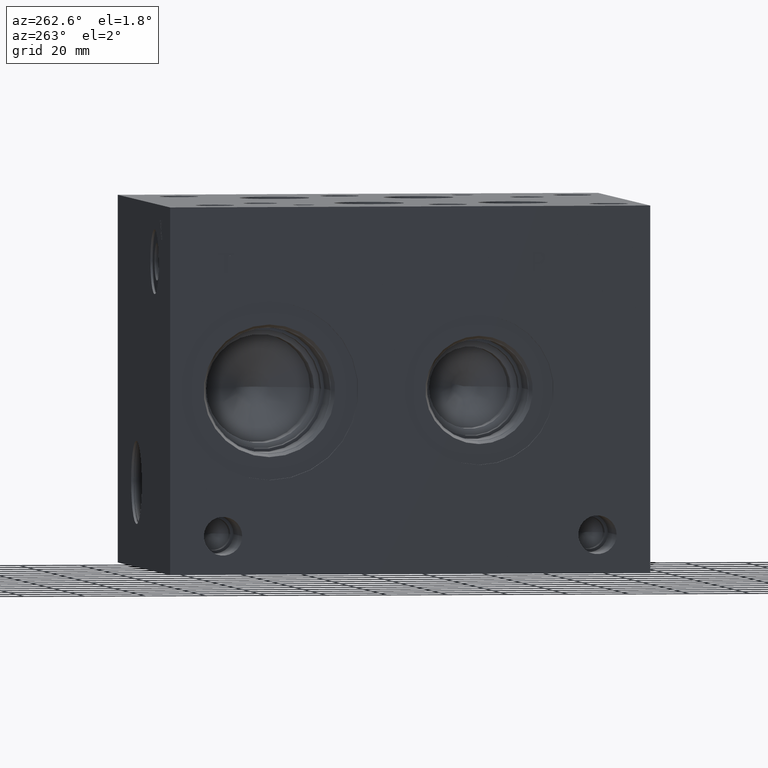
[diagram: clean part render]
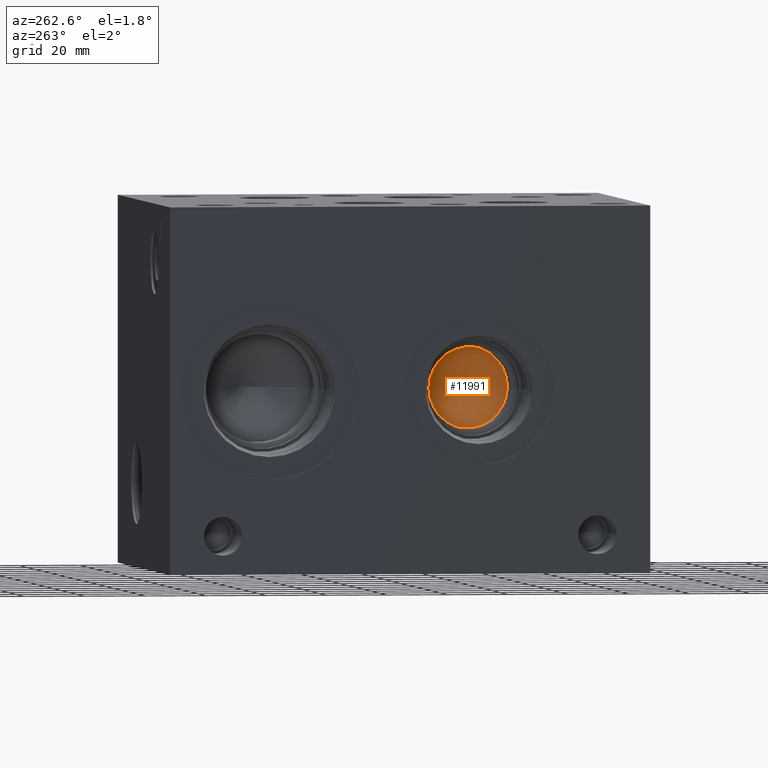
[diagram: same view with one face highlighted and labeled with its STEP entity id]
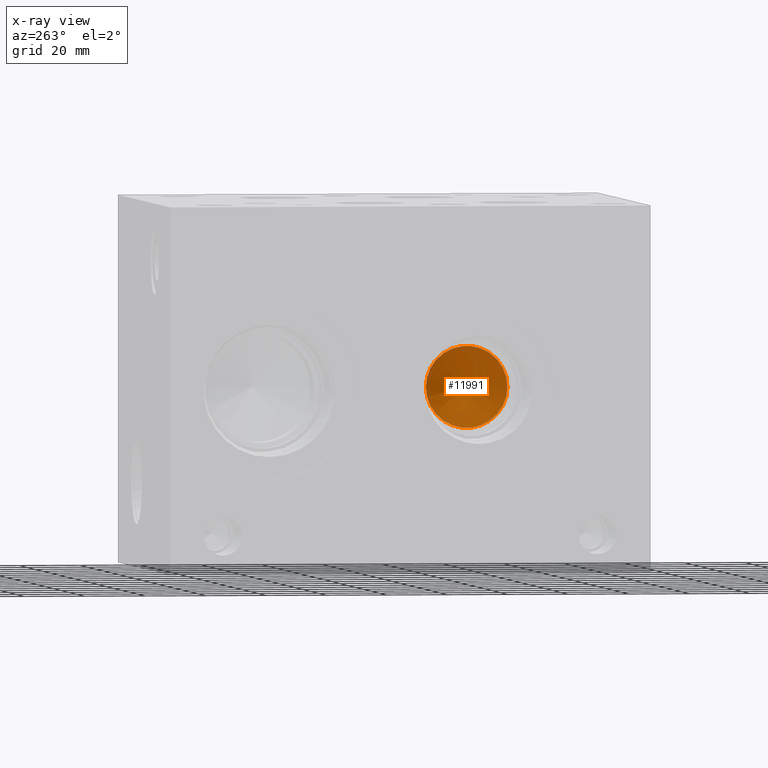
[diagram: x-ray of the same camera — body ghosted, the highlighted face saturated]
A machine part, auxiliary view. The second image highlights one B-rep face of the part: STEP entity #11991.
The next image is the same camera in x-ray: the body ghosted, the highlighted face saturated — about 1% of this face is hidden behind the body in this view.
In plain terms, the highlighted conical surface has half-angle 60 deg.
Its self-contained STEP definition (entity closure, byte-faithful):
#50=CONICAL_SURFACE('',#12659,6.7437,1.0471975511966);
#320=CIRCLE('',#12660,13.4874);
#321=CIRCLE('',#12661,13.4874);
#1515=FACE_OUTER_BOUND('',#2211,.T.);
#2211=EDGE_LOOP('',(#10274,#10275,#10276,#10277));
#3350=LINE('',#20417,#4448);
#4448=VECTOR('',#15059,6.7437);
#5522=VERTEX_POINT('',#20413);
#5523=VERTEX_POINT('',#20414);
#5524=VERTEX_POINT('',#20416);
#7151=EDGE_CURVE('',#5522,#5523,#320,.T.);
#7152=EDGE_CURVE('',#5523,#5524,#3350,.T.);
#7153=EDGE_CURVE('',#5523,#5522,#321,.T.);
#10274=ORIENTED_EDGE('',*,*,#7151,.T.);
#10275=ORIENTED_EDGE('',*,*,#7152,.T.);
#10276=ORIENTED_EDGE('',*,*,#7152,.F.);
#10277=ORIENTED_EDGE('',*,*,#7153,.T.);
#11991=ADVANCED_FACE('',(#1515),#50,.F.);
#12659=AXIS2_PLACEMENT_3D('',#20412,#15055,#15056);
#12660=AXIS2_PLACEMENT_3D('',#20415,#15057,#15058);
#12661=AXIS2_PLACEMENT_3D('',#20418,#15060,#15061);
#15055=DIRECTION('center_axis',(-1.,0.,0.));
#15056=DIRECTION('ref_axis',(0.,1.,0.));
#15057=DIRECTION('center_axis',(-1.,0.,0.));
#15058=DIRECTION('ref_axis',(0.,1.,0.));
#15059=DIRECTION('',(0.5,0.866025403784439,-1.06057523872491E-16));
#15060=DIRECTION('center_axis',(-1.,0.,0.));
#15061=DIRECTION('ref_axis',(0.,1.,0.));
#20412=CARTESIAN_POINT('Origin',(36.4358270103341,56.4896,60.325));
#20413=CARTESIAN_POINT('',(32.54235,69.977,60.325));
#20414=CARTESIAN_POINT('',(32.54235,43.0022,60.325));
#20415=CARTESIAN_POINT('Origin',(32.54235,56.4896,60.325));
#20416=CARTESIAN_POINT('',(40.3293040206682,56.4896,60.325));
#20417=CARTESIAN_POINT('',(36.4358270103341,49.7459,60.325));
#20418=CARTESIAN_POINT('Origin',(32.54235,56.4896,60.325));